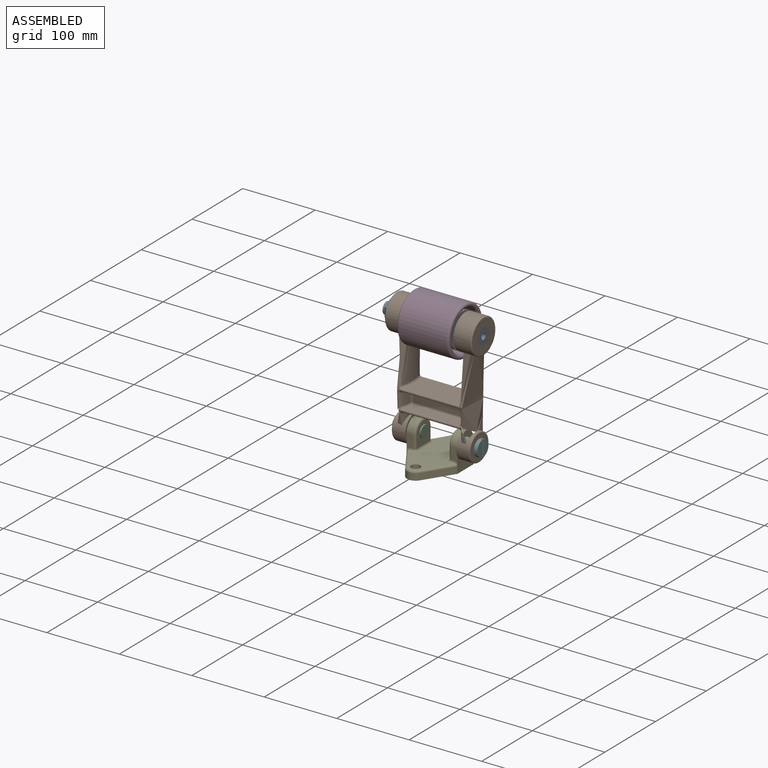
[diagram: assembled view]
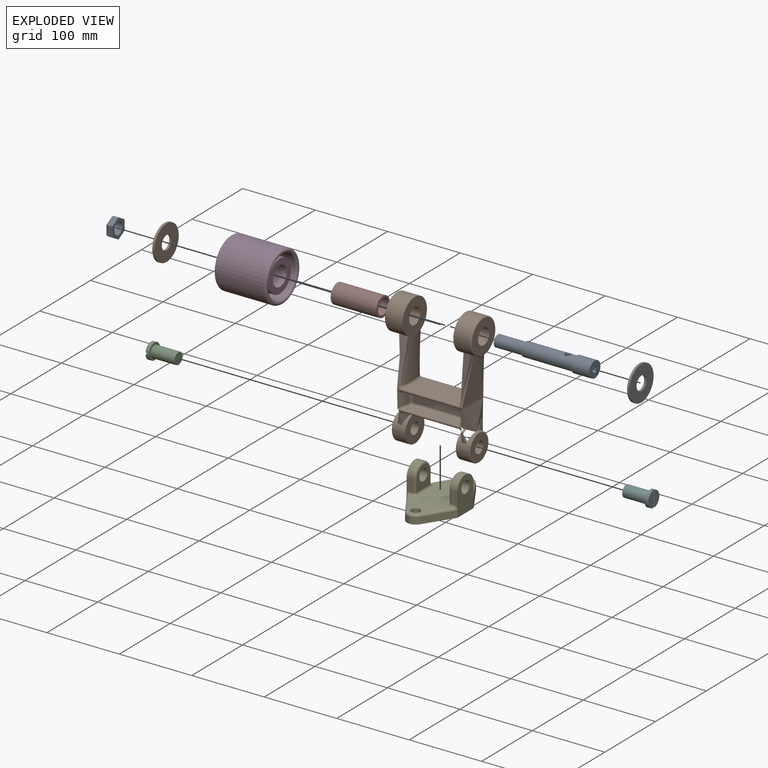
[diagram: exploded view]
GUIDED TOUR — MATED ASSEMBLY (Onshape document 57325394e4b04a08b7d29792, AutoMate assembly 57325394e4b04a08b7d29792_8d2606eafc83a41d2688beb7_20a024cef18a77f3e9520121_default)

This assembly has 10 components, labeled P0..P9 below (a component is one placed occurrence of a part; the same part can appear more than once), held together by 11 mates. A mate is a constraint between two components; its type names the relative motion it leaves free:
  CYLINDRICAL — leaves both rotation about and translation along the listed axis free,
  FASTENED — locks the two components together rigidly (no relative motion).
Axis/direction vectors are unit vectors and 'through' points are millimeter coordinates, both in the assembly's world frame.

MATES
  1. FASTENED "Fastened 4": P9 <-> P1, direction (-1.000, 0.000, 0.000) through (-160.87, -73.57, 147.60) mm
  2. FASTENED "Fastened 2": P9 <-> P7, direction (1.000, 0.000, 0.000) through (-157.87, -73.57, 147.60) mm
  3. FASTENED "Fastened 9": P5 <-> P1, direction (-1.000, 0.000, 0.000) through (-71.87, -73.57, 7.60) mm
  4. FASTENED "Fastened 3": P6 <-> P7, direction (1.000, 0.000, 0.000) through (-94.87, -73.57, 147.60) mm
  5. FASTENED "Fastened 1": P7 <-> P3, direction (-1.000, 0.000, 0.000) through (-126.37, -73.57, 147.60) mm
  6. FASTENED "Fastened 6": P1 <-> P4, direction (1.000, 0.000, 0.000) through (-160.87, -73.57, 7.60) mm
  7. CYLINDRICAL "Cylindrical 1": P5 <-> P1, axis (1.000, 0.000, 0.000) through (-71.87, -73.57, 7.60) mm
  8. FASTENED "Fastened 7": P2 <-> P1, direction (1.000, 0.000, 0.000) through (-179.87, -73.57, 7.60) mm
  9. CYLINDRICAL "Cylindrical 2": P2 <-> P1, axis (-1.000, 0.000, 0.000) through (-179.87, -73.57, 7.60) mm
  10. FASTENED "Fastened 5": P0 <-> P1, direction (-1.000, 0.000, 0.000) through (-90.87, -73.57, 147.60) mm
  11. FASTENED "Fastened 8": P8 <-> P1, direction (1.000, 0.000, 0.000) through (-185.87, -73.57, 147.60) mm

ASSEMBLY ORDER
  1. P1 — the base component [order heuristic]
  2. P0 — core [order heuristic]
  3. P7 — core [order heuristic]
  4. P3 — core [order heuristic]
  5. P6 [order verified]
  6. P9 — core [order heuristic]
  7. P8 — core [order heuristic]
  8. P4 [order verified]
  9. P5 [order verified]
  10. P2 [order verified]
Order-tag legend:
  [order verified] — this step's position reverses a verified removal order: the component was checked to insert without passing through the ones already placed.
  [order heuristic] — the first 6 components form the assembly's core: parts whose collision-free extraction could not be verified, listed in mate-graph order.

Of the 10 components, 9 carry the full construction recipe — the FeatureScript program that regenerates the part's solid from scratch; the rest are supplied as boundary geometry only.
Each toured component is shown spotlighted twice — in the assembled view, then in the exploded view, where a leader line traces a displaced component back to its assembled socket (saturated green if recipe-attached, orange if geometry-only; every other component desaturated gray) — followed by its recipe or geometry summary and the mates that hold it.
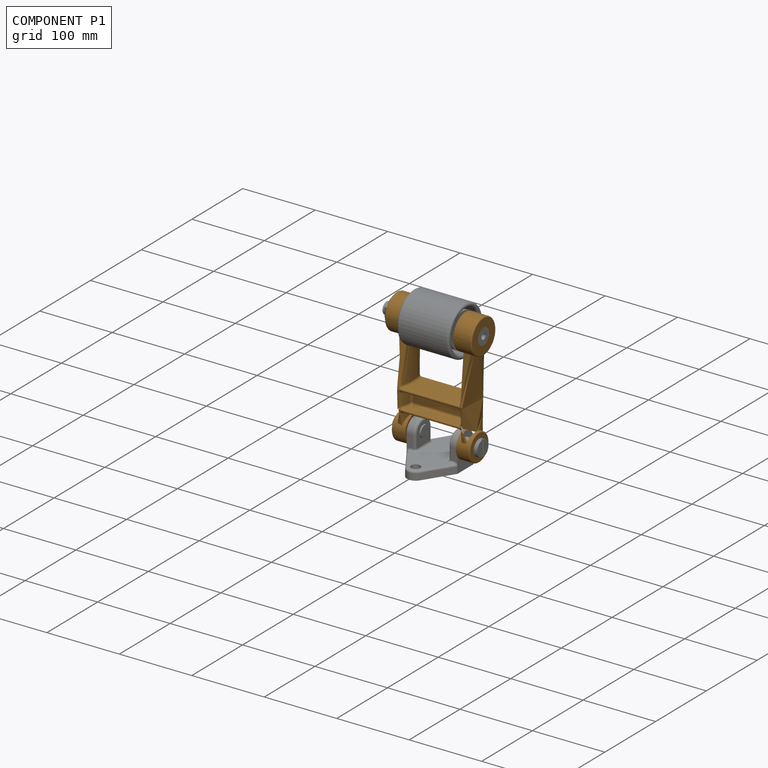
[diagram: component P1 — assembled]
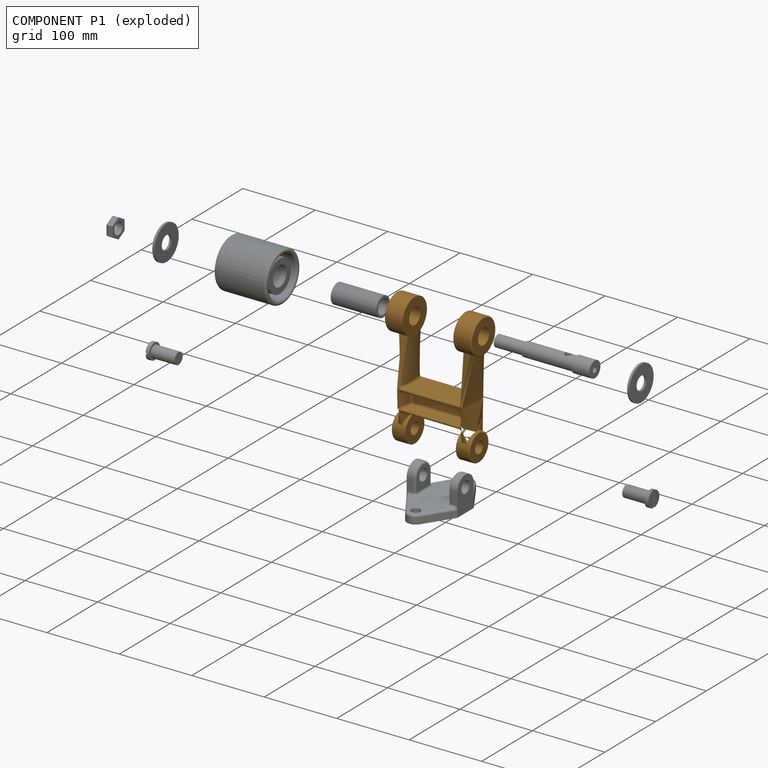
[diagram: component P1 — exploded]
COMPONENT P1 — geometry summary (no construction recipe available for this part):
  bounding box: 187.1 x 120.6 x 52.5 mm
  B-rep topology: 1 solid, 88 faces, 404 edges
  volume: 220370 mm^3 (19% of its bounding box)
  symmetry: mirror-symmetric across its y mid-plane
Held by: FASTENED mate "Fastened 4" to P9; FASTENED mate "Fastened 9" to P5; FASTENED mate "Fastened 6" to P4; CYLINDRICAL mate "Cylindrical 1" to P5; FASTENED mate "Fastened 7" to P2; CYLINDRICAL mate "Cylindrical 2" to P2; FASTENED mate "Fastened 5" to P0; FASTENED mate "Fastened 8" to P8.
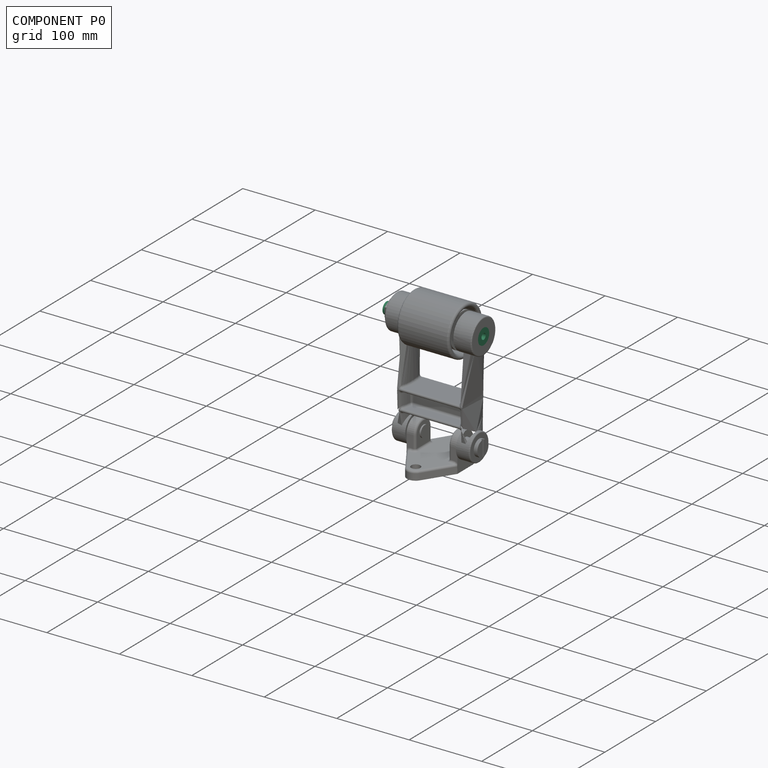
[diagram: component P0 — assembled]
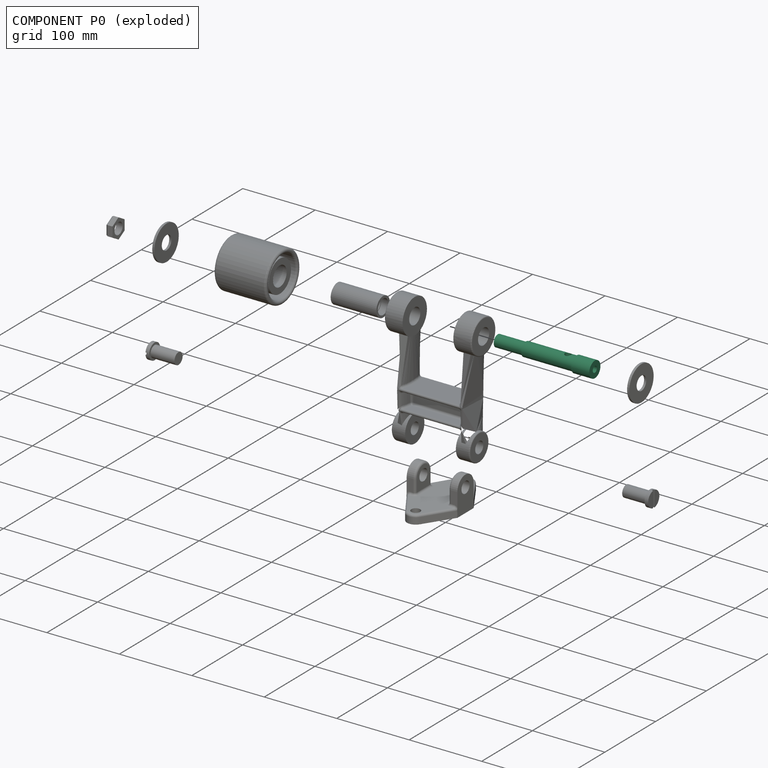
[diagram: component P0 — exploded]
COMPONENT P0 — recipe-attached (CADFS 00152145, mesh-verified: the recipe's output STEP matches this component's geometry to below the mesh-comparison resolution (tessellation chordal tolerance ~0.206 mm)).
Held by: FASTENED mate "Fastened 5" to P1.
Construction recipe (FeatureScript — the CAD program that rebuilds this solid; sketch coordinates are in the units given by the * unit suffixes, e.g. mm):

FeatureScript 1511;
import(path : "onshape/std/geometry.fs", version : "1511.0");
import(path : "onshape/std/common.fs", version : "1511.0");
const mm = millimeter;
const VERTEX = EntityType.VERTEX;
const EDGE = EntityType.EDGE;
const FACE = EntityType.FACE;
const BODY = EntityType.BODY;
function v(x, y){return vector(x, y);}
function OD(order){return orderDisambiguation(order);}
function OSD(set){return originalSetDisambiguation(set);}
function TD(topology){return topologyDisambiguation(topology);}
function TDD(query){return trueDependencyDisambiguation(query);}
function sQuery(a, b, c) {return sketchEntityQuery(a, b, c);}

annotation { "Feature Type Name" : "Feature", "Feature Type Description" : "" }
export const myFeature = defineFeature(function(context is Context, id is Id, definition is map)
    precondition{}
    {
        {
            var Q0;
            Q0=qCreatedBy(makeId("Front.planeOp"),FACE);
            var sketch = newSketch(context, id + "F0", { "sketchPlane" : qUnion([Q0])});
            skLineSegment(sketch, "E0", {"start": v(-58.13, 0) * mm, "end": v(0, 0) * mm, "construction": true});
            skLineSegment(sketch, "E1.bottom", {"start": v(0, 0) * mm, "end": v(-25, 0) * mm});
            skLineSegment(sketch, "E1.top", {"start": v(0, 11) * mm, "end": v(-25, 11) * mm});
            skLineSegment(sketch, "E1.left", {"start": v(0, 0) * mm, "end": v(0, 11) * mm});
            skLineSegment(sketch, "E1.right", {"start": v(-25, 0) * mm, "end": v(-25, 11) * mm});
            skLineSegment(sketch, "E2.bottom", {"start": v(-25, 0) * mm, "end": v(-37, 0) * mm});
            skLineSegment(sketch, "E2.top", {"start": v(-25, 9.5) * mm, "end": v(-37, 9.5) * mm});
            skLineSegment(sketch, "E2.left", {"start": v(-25, 0) * mm, "end": v(-25, 9.5) * mm});
            skLineSegment(sketch, "E2.right", {"start": v(-37, 0) * mm, "end": v(-37, 9.5) * mm});
            skLineSegment(sketch, "E3.bottom", {"start": v(-37, 0) * mm, "end": v(-95, 0) * mm});
            skLineSegment(sketch, "E3.top", {"start": v(-37, 9.5) * mm, "end": v(-95, 9.5) * mm});
            skLineSegment(sketch, "E3.right", {"start": v(-95, 0) * mm, "end": v(-95, 9.5) * mm});
            skLineSegment(sketch, "E4.bottom", {"start": v(-95, 0) * mm, "end": v(-134, 0) * mm});
            skLineSegment(sketch, "E4.top", {"start": v(-95, 8) * mm, "end": v(-134, 8) * mm});
            skLineSegment(sketch, "E4.left", {"start": v(-95, 0) * mm, "end": v(-95, 8) * mm});
            skLineSegment(sketch, "E4.right", {"start": v(-134, 0) * mm, "end": v(-134, 8) * mm});
            skLineSegment(sketch, "E5.MirrorCS", {"start": v(-25, 0) * mm, "end": v(-25, -11) * mm});
            skLineSegment(sketch, "E6.MirrorCS", {"start": v(-37, 0) * mm, "end": v(-37, -9.5) * mm});
            skLineSegment(sketch, "E7.MirrorCS", {"start": v(-95, 0) * mm, "end": v(-95, -8) * mm});
            skLineSegment(sketch, "E8.MirrorCS", {"start": v(-134, 0) * mm, "end": v(-134, -8) * mm});
            skLineSegment(sketch, "E9.MirrorCS", {"start": v(-95, 0) * mm, "end": v(-95, -9.5) * mm});
            skLineSegment(sketch, "E10.MirrorCS", {"start": v(-37, -9.5) * mm, "end": v(-95, -9.5) * mm});
            skLineSegment(sketch, "E11.MirrorCS", {"start": v(-25, 0) * mm, "end": v(-25, -9.5) * mm});
            skLineSegment(sketch, "E12.MirrorCS", {"start": v(-25, -9.5) * mm, "end": v(-37, -9.5) * mm});
            skLineSegment(sketch, "E13.MirrorCS", {"start": v(0, 0) * mm, "end": v(0, -11) * mm});
            skLineSegment(sketch, "E14.MirrorCS", {"start": v(0, -11) * mm, "end": v(-25, -11) * mm});
            skLineSegment(sketch, "E15.MirrorCS", {"start": v(-95, -8) * mm, "end": v(-134, -8) * mm});
            skSolve(sketch);
        }
        {
            var Q0;
            Q0=makeQuery(id+"F0.imprint","IMPRINT",FACE,{"disambiguationData":[TD([[makeQuery(id+"F0.imprint","IMPRINT",EDGE,{"derivedFrom":sQuery(id+"F0.wireOp",EDGE,"E1.bottom")}),-1.0]])]});
            var Q1;
            Q1=makeQuery(id+"F0.imprint","IMPRINT",FACE,{"disambiguationData":[TD([[makeQuery(id+"F0.imprint","IMPRINT",EDGE,{"derivedFrom":sQuery(id+"F0.wireOp",EDGE,"E2.top")}),1.0]])]});
            var Q2;
            Q2=makeQuery(id+"F0.imprint","IMPRINT",FACE,{"disambiguationData":[TD([[makeQuery(id+"F0.imprint","IMPRINT",EDGE,{"derivedFrom":sQuery(id+"F0.wireOp",EDGE,"E3.top")}),1.0]])]});
            var Q3;
            Q3=makeQuery(id+"F0.imprint","IMPRINT",FACE,{"disambiguationData":[TD([[makeQuery(id+"F0.imprint","IMPRINT",EDGE,{"derivedFrom":sQuery(id+"F0.wireOp",EDGE,"E4.top")}),1.0]])]});
            var Q4;
            Q4=sQuery(id+"F0.wireOp",EDGE,"E1.bottom");
            revolve(context, id + "F1", {"entities" : qUnion([Q0, Q1, Q2, Q3]), "axis" : qUnion([Q4]), "revolveType" : RevolveType.FULL});
        }
        {
            var Q0;
            Q0=qCreatedBy(makeId("Top.planeOp"),FACE);
            var sketch = newSketch(context, id + "F2", { "sketchPlane" : qUnion([Q0])});
            skLineSegment(sketch, "E16.0", {"start": v(-37, 0) * mm, "end": v(-95, 0) * mm});
            skLineSegment(sketch, "E17.0", {"start": v(-25, 0) * mm, "end": v(-37, 0) * mm});
            skCircle(sketch, "E18", {"center": v(-37, 0) * mm, "radius": 4.15 * mm});
            skSolve(sketch);
        }
        {
            var Q0;
            {var subQ0=sQuery(id+"F2.wireOp",EDGE,"E17.0");var subQ1=sQuery(id+"F2.wireOp",EDGE,"E16.0");var subQ2=makeQuery(id+"F2.imprint","INTERSECT",VERTEX,{"derivedFrom":[subQ1,subQ0]});Q0=makeQuery(id+"F2.imprint","IMPRINT",FACE,{"disambiguationData":[TD([[makeQuery(id+"F2.imprint","IMPRINT",EDGE,{"disambiguationData":[TD([[subQ2,-1.0]])],"derivedFrom":subQ1}),-1.0]])]});}
            var Q1;
            {var subQ0=sQuery(id+"F2.wireOp",EDGE,"E17.0");var subQ1=sQuery(id+"F2.wireOp",EDGE,"E16.0");var subQ2=makeQuery(id+"F2.imprint","INTERSECT",VERTEX,{"derivedFrom":[subQ1,subQ0]});Q1=makeQuery(id+"F2.imprint","IMPRINT",FACE,{"disambiguationData":[TD([[makeQuery(id+"F2.imprint","IMPRINT",EDGE,{"disambiguationData":[TD([[subQ2,-1.0]])],"derivedFrom":subQ1}),1.0]])]});}
            extrude(context, id + "F3", {"entities" : qUnion([Q0, Q1]), "operationType" : NewBodyOperationType.REMOVE, "endBound" : BoundingType.THROUGH_ALL, "depth" : 25 * mm, "hasSecondDirection" : true, "secondDirectionBound" : SecondDirectionBoundingType.THROUGH_ALL, "secondDirectionOppositeDirection" : true, "secondDirectionDepth" : 25 * mm});
        }
        {
            var Q0;
            Q0=qCreatedBy(makeId("Right.planeOp"),FACE);
            var sketch = newSketch(context, id + "F4", { "sketchPlane" : qUnion([Q0])});
            skCircle(sketch, "E19", {"center": v(0, 0) * mm, "radius": 4.15 * mm});
            skSolve(sketch);
        }
        {
            var Q0;
            Q0=qSketchRegion(id+"F4",true);
            extrude(context, id + "F5", {"entities" : qUnion([Q0]), "operationType" : NewBodyOperationType.REMOVE, "oppositeDirection" : true, "depth" : 44 * mm});
        }
    });
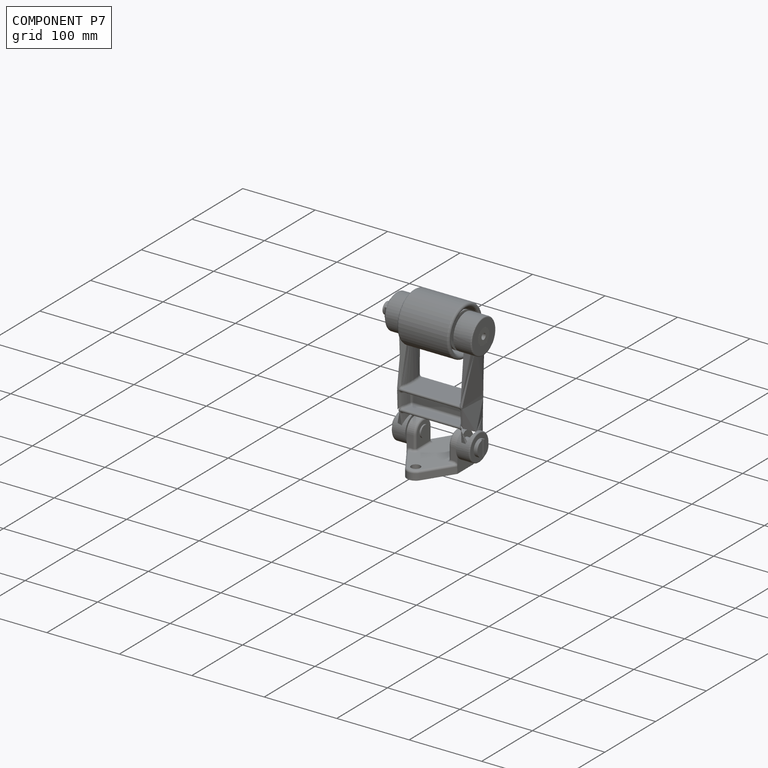
[diagram: component P7 — assembled]
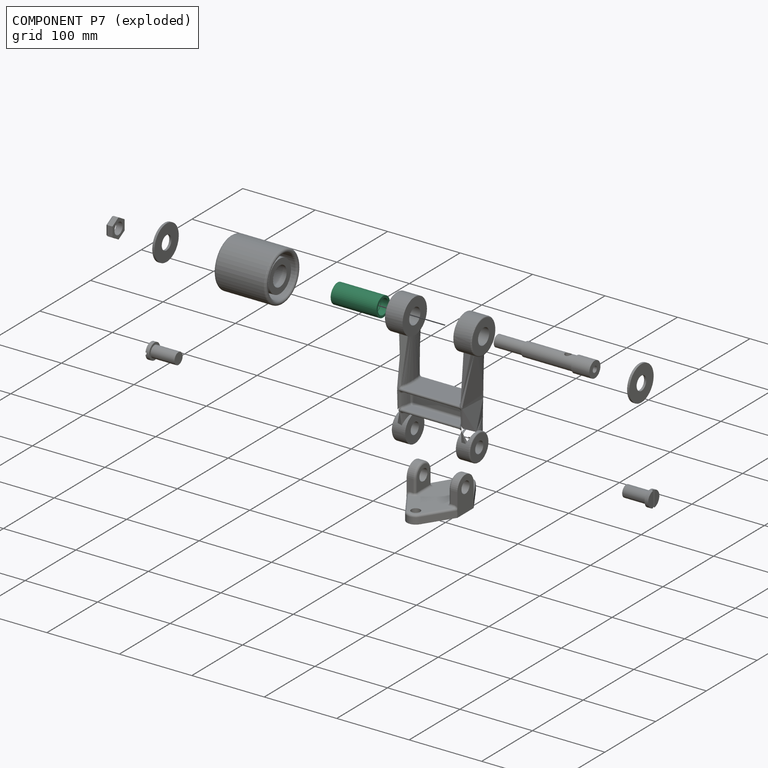
[diagram: component P7 — exploded]
COMPONENT P7 — recipe-attached (CADFS 00152167, mesh-verified: the recipe's output STEP matches this component's geometry to below the mesh-comparison resolution (tessellation chordal tolerance ~0.11 mm)).
Held by: FASTENED mate "Fastened 2" to P9; FASTENED mate "Fastened 3" to P6; FASTENED mate "Fastened 1" to P3.
Construction recipe (FeatureScript — the CAD program that rebuilds this solid; sketch coordinates are in the units given by the * unit suffixes, e.g. mm):

FeatureScript 1511;
import(path : "onshape/std/geometry.fs", version : "1511.0");
import(path : "onshape/std/common.fs", version : "1511.0");
const mm = millimeter;
const VERTEX = EntityType.VERTEX;
const EDGE = EntityType.EDGE;
const FACE = EntityType.FACE;
const BODY = EntityType.BODY;
function v(x, y){return vector(x, y);}
function OD(order){return orderDisambiguation(order);}
function OSD(set){return originalSetDisambiguation(set);}
function TD(topology){return topologyDisambiguation(topology);}
function TDD(query){return trueDependencyDisambiguation(query);}
function sQuery(a, b, c) {return sketchEntityQuery(a, b, c);}

annotation { "Feature Type Name" : "Feature", "Feature Type Description" : "" }
export const myFeature = defineFeature(function(context is Context, id is Id, definition is map)
    precondition{}
    {
        {
            var Q0;
            Q0=qCreatedBy(makeId("Right.planeOp"),FACE);
            var sketch = newSketch(context, id + "F0", { "sketchPlane" : qUnion([Q0])});
            skCircle(sketch, "E0", {"center": v(0, 0) * mm, "radius": 13.45 * mm});
            skSolve(sketch);
        }
        {
            var Q0;
            Q0=qSketchRegion(id+"F0",true);
            extrude(context, id + "F1", {"entities" : qUnion([Q0]), "depth" : 63 * mm});
        }
        {
            var Q0;
            Q0=makeQuery(id+"F1.opExtrude","CAP_FACE",FACE,{"disambiguationData":[OSD([sQuery(id+"F0.wireOp",EDGE,"E0")])],"isStart":false});
            var sketch = newSketch(context, id + "F2", { "sketchPlane" : qUnion([Q0])});
            skCircle(sketch, "E1", {"center": v(0, 0) * mm, "radius": 9.5 * mm});
            skSolve(sketch);
        }
        {
            var Q0;
            Q0=qSketchRegion(id+"F2",true);
            extrude(context, id + "F3", {"entities" : qUnion([Q0]), "operationType" : NewBodyOperationType.REMOVE, "endBound" : BoundingType.THROUGH_ALL, "oppositeDirection" : true, "depth" : 25 * mm});
        }
        {
            var Q0;
            Q0=makeQuery(id+"F1.opExtrude","CAP_FACE",FACE,{"disambiguationData":[OSD([sQuery(id+"F0.wireOp",EDGE,"E0")])],"isStart":false});
            var sketch = newSketch(context, id + "F4", { "sketchPlane" : qUnion([Q0])});
            skCircle(sketch, "E2", {"center": v(0, 0) * mm, "radius": 10.3 * mm});
            skSolve(sketch);
        }
        {
            var Q0;
            Q0=qSketchRegion(id+"F4",true);
            extrude(context, id + "F5", {"entities" : qUnion([Q0]), "operationType" : NewBodyOperationType.REMOVE, "oppositeDirection" : true, "depth" : 10 * mm});
        }
    });
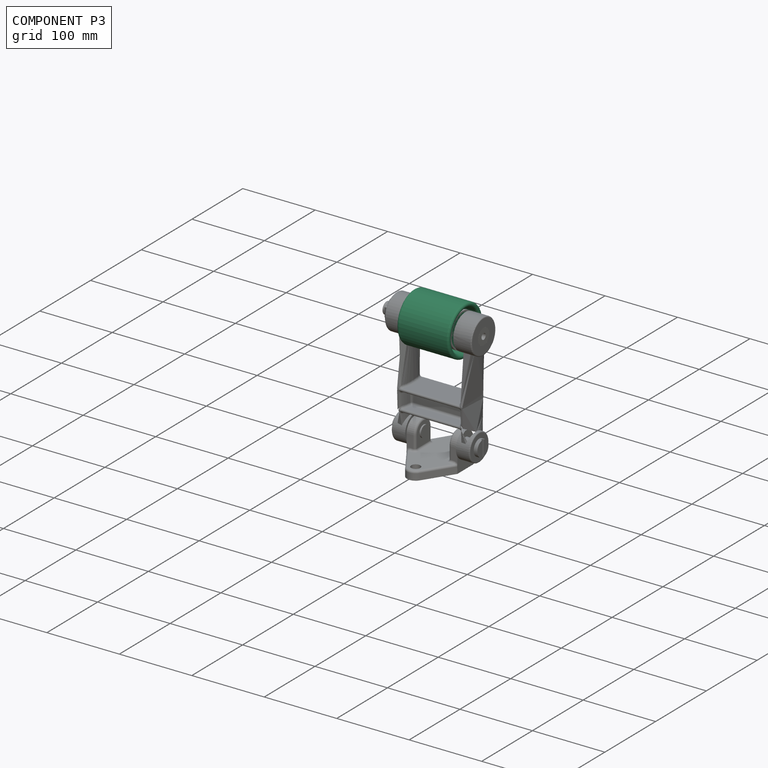
[diagram: component P3 — assembled]
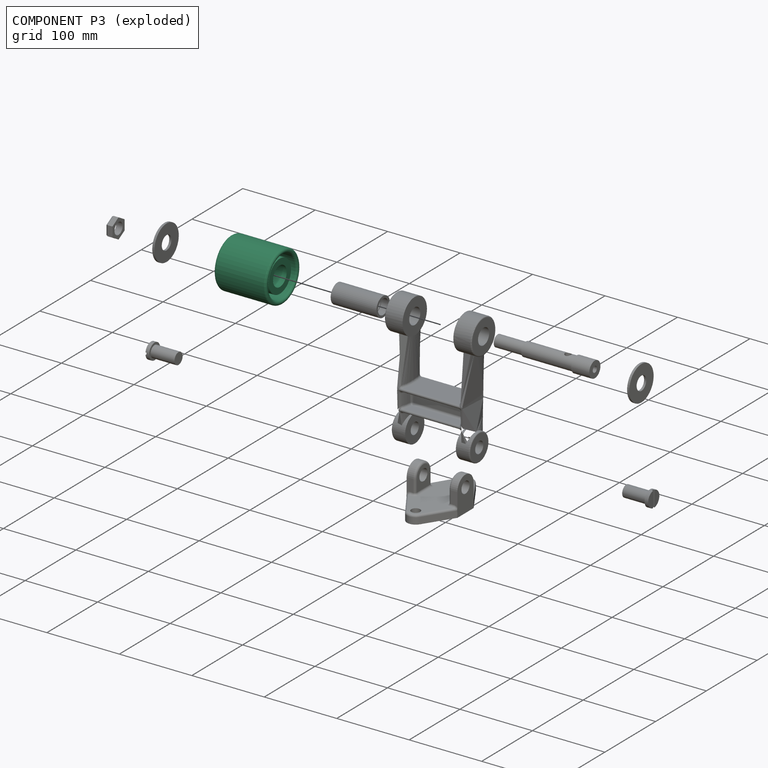
[diagram: component P3 — exploded]
COMPONENT P3 — recipe-attached (CADFS 00152165, mesh-verified: the recipe's output STEP matches this component's geometry to below the mesh-comparison resolution (tessellation chordal tolerance ~0.18 mm)).
Held by: FASTENED mate "Fastened 1" to P7.
Construction recipe (FeatureScript — the CAD program that rebuilds this solid; sketch coordinates are in the units given by the * unit suffixes, e.g. mm):

FeatureScript 1511;
import(path : "onshape/std/geometry.fs", version : "1511.0");
import(path : "onshape/std/common.fs", version : "1511.0");
const mm = millimeter;
const VERTEX = EntityType.VERTEX;
const EDGE = EntityType.EDGE;
const FACE = EntityType.FACE;
const BODY = EntityType.BODY;
function v(x, y){return vector(x, y);}
function OD(order){return orderDisambiguation(order);}
function OSD(set){return originalSetDisambiguation(set);}
function TD(topology){return topologyDisambiguation(topology);}
function TDD(query){return trueDependencyDisambiguation(query);}
function sQuery(a, b, c) {return sketchEntityQuery(a, b, c);}

annotation { "Feature Type Name" : "Feature", "Feature Type Description" : "" }
export const myFeature = defineFeature(function(context is Context, id is Id, definition is map)
    precondition{}
    {
        {
            var Q0;
            Q0=qCreatedBy(makeId("Right.planeOp"),FACE);
            var sketch = newSketch(context, id + "F0", { "sketchPlane" : qUnion([Q0])});
            skCircle(sketch, "E0", {"center": v(0, 0) * mm, "radius": 13.45 * mm});
            skCircle(sketch, "E1", {"center": v(0, 0) * mm, "radius": 22 * mm});
            skSolve(sketch);
        }
        {
            var Q0;
            Q0=qSketchRegion(id+"F0",true);
            extrude(context, id + "F1", {"entities" : qUnion([Q0]), "depth" : 63 * mm});
        }
        {
            var Q0;
            Q0=qCreatedBy(makeId("Front.planeOp"),FACE);
            var sketch = newSketch(context, id + "F2", { "sketchPlane" : qUnion([Q0])});
            skLineSegment(sketch, "E2", {"start": v(31.5, 0) * mm, "end": v(31.5, 25.59) * mm, "construction": true});
            skLineSegment(sketch, "E3", {"start": v(-1.5, 34) * mm, "end": v(64.5, 34) * mm});
            skArc(sketch, "E4", {"start": v(-1.5, 34) * mm, "mid": v(-4.5, 31) * mm, "end": v(-1.5, 28) * mm});
            skArc(sketch, "E5", {"start": v(64.5, 34) * mm, "mid": v(67.5, 31) * mm, "end": v(64.5, 28) * mm});
            skLineSegment(sketch, "E6", {"start": v(-1.5, 28) * mm, "end": v(25.5, 28) * mm});
            skLineSegment(sketch, "E7", {"start": v(64.5, 28) * mm, "end": v(37.5, 28) * mm});
            skLineSegment(sketch, "E8", {"start": v(0, 22) * mm, "end": v(63, 22) * mm, "construction": true});
            skArc(sketch, "E9", {"start": v(25.5, 28) * mm, "mid": v(28.5, 25) * mm, "end": v(25.5, 22) * mm});
            skArc(sketch, "E10", {"start": v(37.5, 28) * mm, "mid": v(34.5, 25) * mm, "end": v(37.5, 22) * mm});
            skLineSegment(sketch, "E11", {"start": v(25.5, 22) * mm, "end": v(37.5, 22) * mm});
            skSolve(sketch);
        }
        {
            var Q0;
            Q0=qSketchRegion(id+"F2",true);
            var Q1;
            Q1=makeQuery(id+"F1.opExtrude","SWEPT_FACE",FACE,{"disambiguationData":[OSD([sQuery(id+"F0.wireOp",EDGE,"E1")])]});
            revolve(context, id + "F3", {"operationType" : NewBodyOperationType.ADD, "entities" : qUnion([Q0]), "axis" : qUnion([Q1]), "revolveType" : RevolveType.FULL});
        }
    });
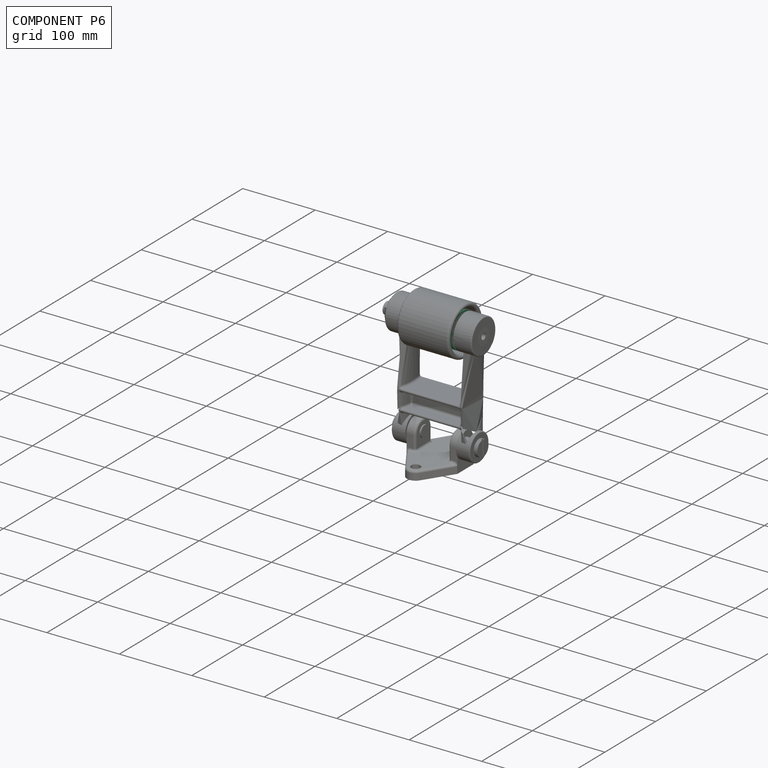
[diagram: component P6 — assembled]
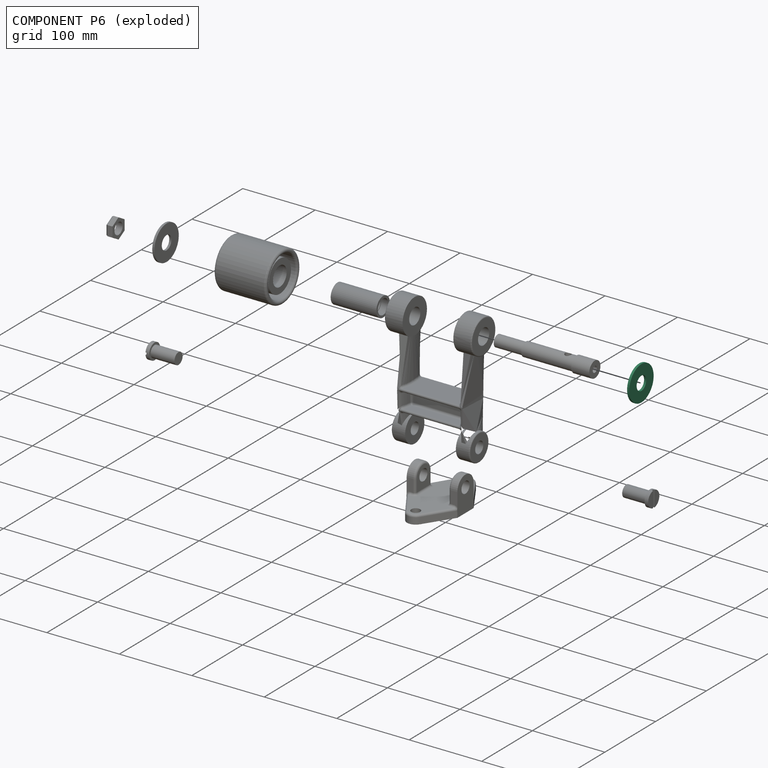
[diagram: component P6 — exploded]
COMPONENT P6 — recipe-attached (CADFS 00152168, mesh-verified: the recipe's output STEP matches this component's geometry to below the mesh-comparison resolution (tessellation chordal tolerance ~0.102 mm)).
Held by: FASTENED mate "Fastened 3" to P7.
Construction recipe (FeatureScript — the CAD program that rebuilds this solid; sketch coordinates are in the units given by the * unit suffixes, e.g. mm):

FeatureScript 1511;
import(path : "onshape/std/geometry.fs", version : "1511.0");
import(path : "onshape/std/common.fs", version : "1511.0");
const mm = millimeter;
const VERTEX = EntityType.VERTEX;
const EDGE = EntityType.EDGE;
const FACE = EntityType.FACE;
const BODY = EntityType.BODY;
function v(x, y){return vector(x, y);}
function OD(order){return orderDisambiguation(order);}
function OSD(set){return originalSetDisambiguation(set);}
function TD(topology){return topologyDisambiguation(topology);}
function TDD(query){return trueDependencyDisambiguation(query);}
function sQuery(a, b, c) {return sketchEntityQuery(a, b, c);}

annotation { "Feature Type Name" : "Feature", "Feature Type Description" : "" }
export const myFeature = defineFeature(function(context is Context, id is Id, definition is map)
    precondition{}
    {
        {
            var Q0;
            Q0=qCreatedBy(makeId("Front.planeOp"),FACE);
            var sketch = newSketch(context, id + "F0", { "sketchPlane" : qUnion([Q0])});
            skCircle(sketch, "E0", {"center": v(0, 0) * mm, "radius": 24 * mm});
            skCircle(sketch, "E1", {"center": v(0, 0) * mm, "radius": 9.5 * mm});
            skSolve(sketch);
        }
        {
            var Q0;
            Q0=makeQuery(id+"F0.imprint","IMPRINT",FACE,{"disambiguationData":[TD([[makeQuery(id+"F0.imprint","IMPRINT",EDGE,{"derivedFrom":sQuery(id+"F0.wireOp",EDGE,"E0")}),1.0]])]});
            extrude(context, id + "F1", {"entities" : qUnion([Q0]), "endBound" : BoundingType.SYMMETRIC, "depth" : 3 * mm});
        }
    });
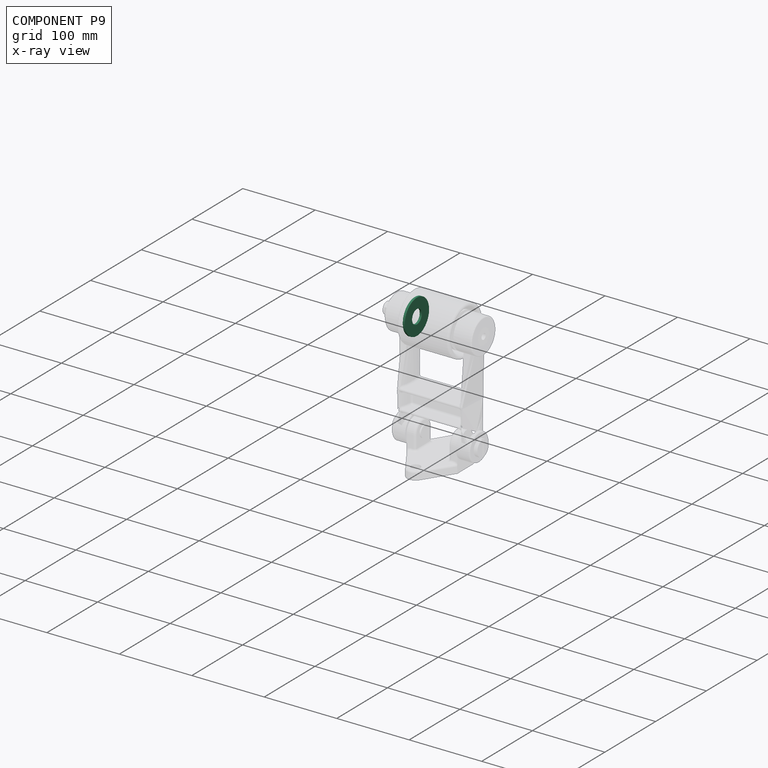
[diagram: component P9 — x-ray view]
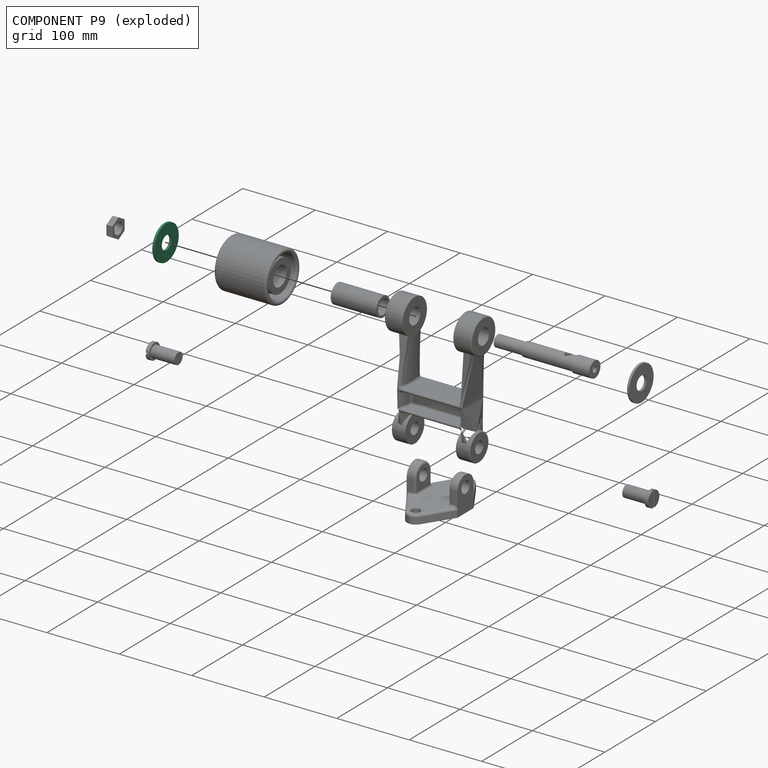
[diagram: component P9 — exploded]
COMPONENT P9 — same part as P6 (CADFS 00152168); its construction recipe is shown at P6.
Held by: FASTENED mate "Fastened 4" to P1; FASTENED mate "Fastened 2" to P7.
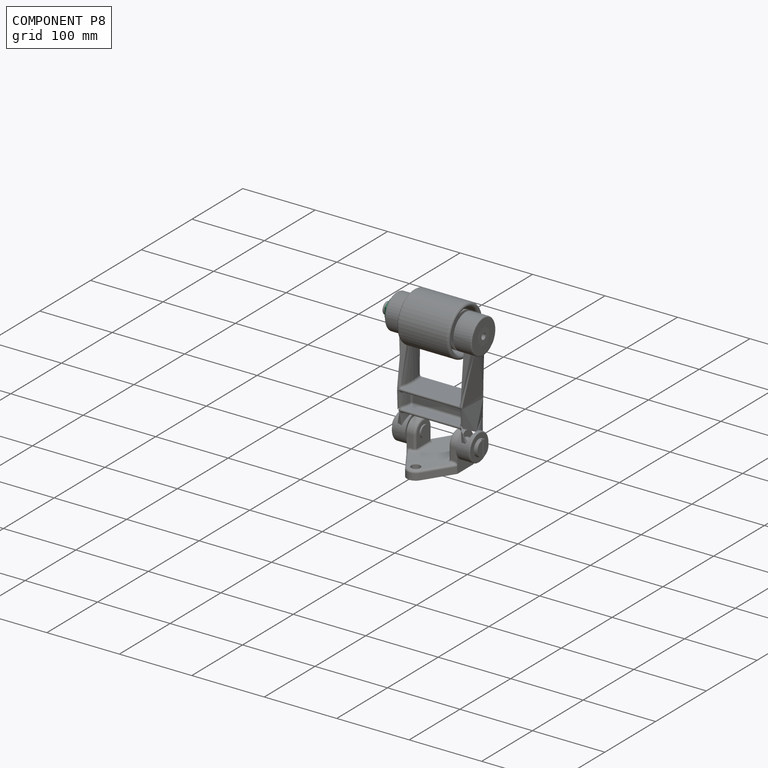
[diagram: component P8 — assembled]
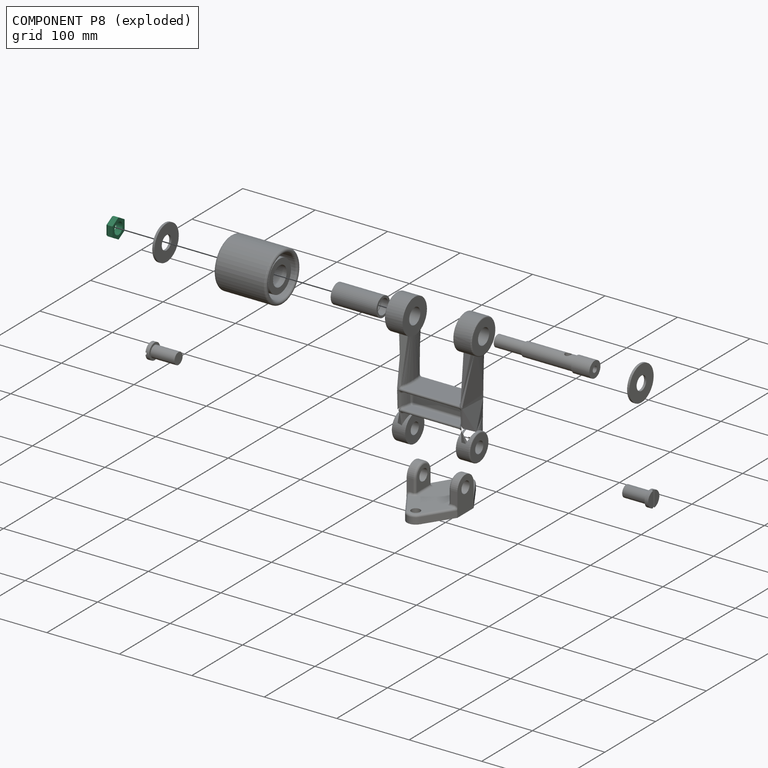
[diagram: component P8 — exploded]
COMPONENT P8 — recipe-attached (CADFS 00152148, mesh-verified: the recipe's output STEP matches this component's geometry to below the mesh-comparison resolution (tessellation chordal tolerance ~0.0566 mm)).
Held by: FASTENED mate "Fastened 8" to P1.
Construction recipe (FeatureScript — the CAD program that rebuilds this solid; sketch coordinates are in the units given by the * unit suffixes, e.g. mm):

FeatureScript 1511;
import(path : "onshape/std/geometry.fs", version : "1511.0");
import(path : "onshape/std/common.fs", version : "1511.0");
const mm = millimeter;
const VERTEX = EntityType.VERTEX;
const EDGE = EntityType.EDGE;
const FACE = EntityType.FACE;
const BODY = EntityType.BODY;
function v(x, y){return vector(x, y);}
function OD(order){return orderDisambiguation(order);}
function OSD(set){return originalSetDisambiguation(set);}
function TD(topology){return topologyDisambiguation(topology);}
function TDD(query){return trueDependencyDisambiguation(query);}
function sQuery(a, b, c) {return sketchEntityQuery(a, b, c);}

annotation { "Feature Type Name" : "Feature", "Feature Type Description" : "" }
export const myFeature = defineFeature(function(context is Context, id is Id, definition is map)
    precondition{}
    {
        {
            var Q0;
            Q0=qCreatedBy(makeId("Front.planeOp"),FACE);
            var sketch = newSketch(context, id + "F0", { "sketchPlane" : qUnion([Q0])});
            skLineSegment(sketch, "E0", {"start": v(0, 0) * mm, "end": v(0, 12) * mm, "construction": true});
            skLineSegment(sketch, "E1", {"start": v(0, 0) * mm, "end": v(0, -12) * mm, "construction": true});
            skLineSegment(sketch, "E2", {"start": v(0, 0) * mm, "end": v(13.86, 0) * mm, "construction": true});
            skLineSegment(sketch, "E3", {"start": v(0, 0) * mm, "end": v(-13.86, 0) * mm, "construction": true});
            skLineSegment(sketch, "E4", {"start": v(-6.93, 12) * mm, "end": v(6.93, 12) * mm});
            skLineSegment(sketch, "E5", {"start": v(6.93, 12) * mm, "end": v(13.86, 0) * mm});
            skLineSegment(sketch, "E6", {"start": v(-6.93, -12) * mm, "end": v(6.93, -12) * mm});
            skLineSegment(sketch, "E7", {"start": v(6.93, -12) * mm, "end": v(13.86, 0) * mm});
            skLineSegment(sketch, "E8", {"start": v(-6.93, -12) * mm, "end": v(-13.86, 0) * mm});
            skLineSegment(sketch, "E9", {"start": v(-6.93, 12) * mm, "end": v(-13.86, 0) * mm});
            skCircle(sketch, "E10", {"center": v(0, 0) * mm, "radius": 8 * mm});
            skLineSegment(sketch, "E11", {"start": v(-13.86, 0) * mm, "end": v(6.93, 12) * mm, "construction": true});
            skLineSegment(sketch, "E12", {"start": v(13.86, 0) * mm, "end": v(-6.93, -12) * mm, "construction": true});
            skLineSegment(sketch, "E13", {"start": v(-6.93, 12) * mm, "end": v(6.93, -12) * mm, "construction": true});
            skSolve(sketch);
        }
        {
            var Q0;
            Q0=makeQuery(id+"F0.imprint","IMPRINT",FACE,{"disambiguationData":[TD([[makeQuery(id+"F0.imprint","IMPRINT",EDGE,{"derivedFrom":sQuery(id+"F0.wireOp",EDGE,"E4")}),-1.0]])]});
            extrude(context, id + "F1", {"entities" : qUnion([Q0]), "depth" : 9 * mm});
        }
        {
            var Q0;
            Q0=makeQuery(id+"F1.opExtrude","CAP_EDGE",EDGE,{"disambiguationData":[OSD([sQuery(id+"F0.wireOp",EDGE,"E9")])],"isStart":true});
            var Q1;
            Q1=makeQuery(id+"F1.opExtrude","CAP_EDGE",EDGE,{"disambiguationData":[OSD([sQuery(id+"F0.wireOp",EDGE,"E8")])],"isStart":true});
            var Q2;
            Q2=makeQuery(id+"F1.opExtrude","CAP_EDGE",EDGE,{"disambiguationData":[OSD([sQuery(id+"F0.wireOp",EDGE,"E4")])],"isStart":true});
            var Q3;
            Q3=makeQuery(id+"F1.opExtrude","CAP_EDGE",EDGE,{"disambiguationData":[OSD([sQuery(id+"F0.wireOp",EDGE,"E5")])],"isStart":true});
            var Q4;
            Q4=makeQuery(id+"F1.opExtrude","CAP_EDGE",EDGE,{"disambiguationData":[OSD([sQuery(id+"F0.wireOp",EDGE,"E7")])],"isStart":true});
            var Q5;
            Q5=makeQuery(id+"F1.opExtrude","CAP_EDGE",EDGE,{"disambiguationData":[OSD([sQuery(id+"F0.wireOp",EDGE,"E6")])],"isStart":true});
            chamfer(context, id + "F2", {"entities" : qUnion([Q0, Q1, Q2, Q3, Q4, Q5]), "chamferType" : ChamferType.OFFSET_ANGLE, "width" : 2 * mm, "oppositeDirection" : false, "angle" : 30 * degree, "tangentPropagation" : true});
        }
    });
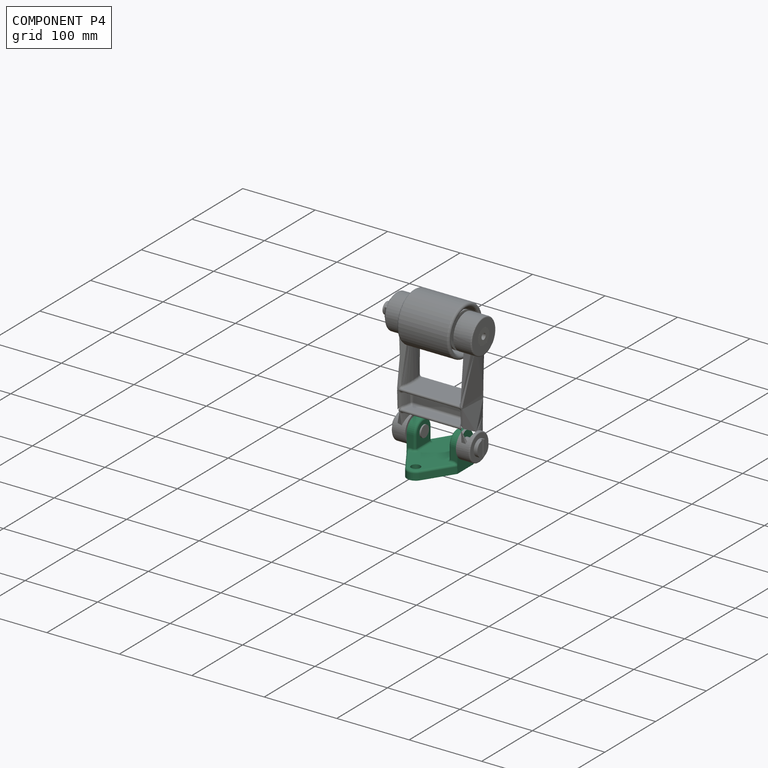
[diagram: component P4 — assembled]
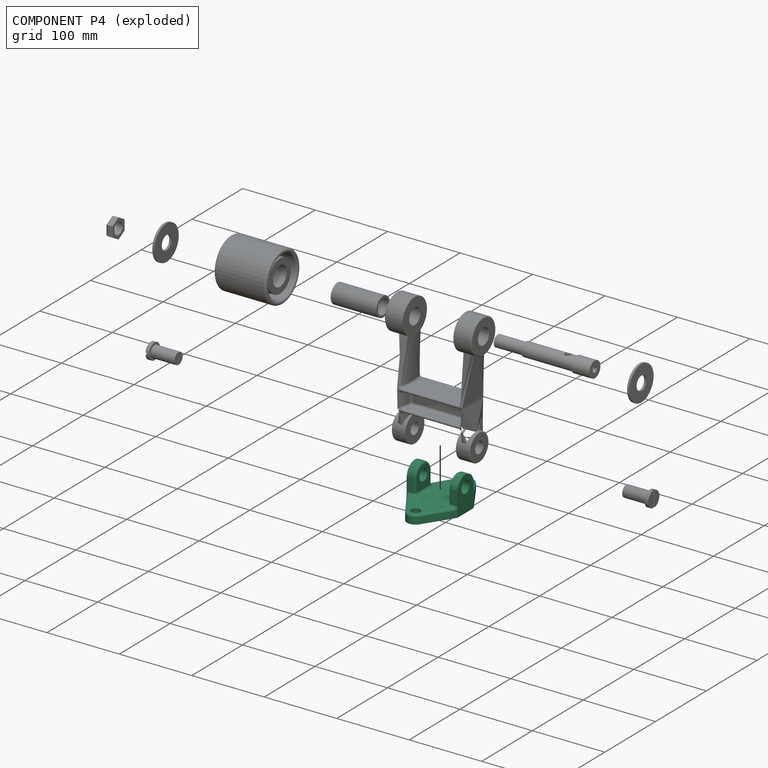
[diagram: component P4 — exploded]
COMPONENT P4 — recipe-attached (CADFS 00152142, mesh-verified: the recipe's output STEP matches this component's geometry to below the mesh-comparison resolution (tessellation chordal tolerance ~0.222 mm)).
Held by: FASTENED mate "Fastened 6" to P1.
Construction recipe (FeatureScript — the CAD program that rebuilds this solid; sketch coordinates are in the units given by the * unit suffixes, e.g. mm):

FeatureScript 1511;
import(path : "onshape/std/geometry.fs", version : "1511.0");
import(path : "onshape/std/common.fs", version : "1511.0");
const mm = millimeter;
const VERTEX = EntityType.VERTEX;
const EDGE = EntityType.EDGE;
const FACE = EntityType.FACE;
const BODY = EntityType.BODY;
function v(x, y){return vector(x, y);}
function OD(order){return orderDisambiguation(order);}
function OSD(set){return originalSetDisambiguation(set);}
function TD(topology){return topologyDisambiguation(topology);}
function TDD(query){return trueDependencyDisambiguation(query);}
function sQuery(a, b, c) {return sketchEntityQuery(a, b, c);}

annotation { "Feature Type Name" : "Feature", "Feature Type Description" : "" }
export const myFeature = defineFeature(function(context is Context, id is Id, definition is map)
    precondition{}
    {
        {
            var Q0;
            Q0=qCreatedBy(makeId("Right.planeOp"),FACE);
            var sketch = newSketch(context, id + "F0", { "sketchPlane" : qUnion([Q0])});
            skLineSegment(sketch, "E0", {"start": v(-16, 0) * mm, "end": v(-16, 32) * mm});
            skLineSegment(sketch, "E1", {"start": v(-16, 0) * mm, "end": v(16, 0) * mm});
            skLineSegment(sketch, "E2", {"start": v(16, 0) * mm, "end": v(16, 32) * mm});
            skCircle(sketch, "E3", {"center": v(0, 32) * mm, "radius": 6 * mm});
            skArc(sketch, "E4", {"start": v(16, 32) * mm, "mid": v(0, 48) * mm, "end": v(-16, 32) * mm});
            skSolve(sketch);
        }
        {
            var Q0;
            Q0=qSketchRegion(id+"F0",true);
            extrude(context, id + "F1", {"entities" : qUnion([Q0]), "oppositeDirection" : true, "depth" : 12 * mm});
        }
        {
            var Q0;
            Q0=qCreatedBy(makeId("Top.planeOp"),FACE);
            var sketch = newSketch(context, id + "F2", { "sketchPlane" : qUnion([Q0])});
            skPoint(sketch, "E5.0", {"position": v(-12, 16) * mm});
            skPoint(sketch, "E6.0", {"position": v(-12, -16) * mm});
            skCircle(sketch, "E7", {"center": v(23, 49.41) * mm, "radius": 6.25 * mm});
            skArc(sketch, "E8", {"start": v(33.18, 55.77) * mm, "mid": v(23, 61.41) * mm, "end": v(12.82, 55.77) * mm});
            skLineSegment(sketch, "E9", {"start": v(33.18, 55.77) * mm, "end": v(58, 16) * mm});
            skPoint(sketch, "E10", {"position": v(-12, 0) * mm});
            skPoint(sketch, "E11", {"position": v(58, 0) * mm});
            skLineSegment(sketch, "E12", {"start": v(58, 0) * mm, "end": v(58, -16) * mm});
            skLineSegment(sketch, "E13", {"start": v(58, -16) * mm, "end": v(58, 16) * mm});
            skPoint(sketch, "E14", {"position": v(23, 0) * mm});
            skLineSegment(sketch, "E15", {"start": v(23, 74.76) * mm, "end": v(23, -48.15) * mm, "construction": true});
            skLineSegment(sketch, "E16", {"start": v(-12, 16) * mm, "end": v(12.82, 55.77) * mm});
            skCircle(sketch, "E17", {"center": v(23, -48.15) * mm, "radius": 6.25 * mm});
            skArc(sketch, "E18", {"start": v(12.91, -54.66) * mm, "mid": v(23, -60.15) * mm, "end": v(33.09, -54.66) * mm});
            skLineSegment(sketch, "E19", {"start": v(58, -16) * mm, "end": v(33.09, -54.66) * mm});
            skLineSegment(sketch, "E20", {"start": v(12.91, -54.66) * mm, "end": v(-12, -16) * mm});
            skLineSegment(sketch, "E21", {"start": v(-12, -16) * mm, "end": v(-12, 16) * mm});
            skSolve(sketch);
        }
        {
            var Q0;
            Q0=qSketchRegion(id+"F2",true);
            extrude(context, id + "F3", {"entities" : qUnion([Q0]), "operationType" : NewBodyOperationType.ADD, "depth" : 12 * mm});
        }
        {
            var Q0;
            Q0=makeQuery(id+"F3.opExtrude","SWEPT_FACE",FACE,{"disambiguationData":[OSD([sQuery(id+"F2.wireOp",EDGE,"E13")])]});
            var sketch = newSketch(context, id + "F4", { "sketchPlane" : qUnion([Q0])});
            skLineSegment(sketch, "E22.0.0", {"start": v(-16, 0) * mm, "end": v(-16, 12) * mm});
            skLineSegment(sketch, "E22.0.1", {"start": v(-16, 12) * mm, "end": v(-16, 32) * mm});
            skArc(sketch, "E22.0.2", {"start": v(-16, 32) * mm, "mid": v(0, 48) * mm, "end": v(16, 32) * mm});
            skLineSegment(sketch, "E22.0.3", {"start": v(16, 32) * mm, "end": v(16, 12) * mm});
            skLineSegment(sketch, "E22.0.4", {"start": v(16, 12) * mm, "end": v(16, 0) * mm});
            skLineSegment(sketch, "E22.0.5", {"start": v(16, 0) * mm, "end": v(-16, 0) * mm});
            skCircle(sketch, "E23.0", {"center": v(0, 32) * mm, "radius": 6 * mm});
            skSolve(sketch);
        }
        {
            var Q0;
            Q0=qSketchRegion(id+"F4",true);
            extrude(context, id + "F5", {"entities" : qUnion([Q0]), "operationType" : NewBodyOperationType.ADD, "oppositeDirection" : true, "depth" : 12 * mm});
        }
        {
            var Q0;
            Q0=makeQuery(id+"F3.opExtrude","CAP_EDGE",EDGE,{"disambiguationData":[OSD([sQuery(id+"F2.wireOp",EDGE,"E19")])],"isStart":false});
            var Q1;
            Q1=makeQuery(id+"F3.opExtrude","CAP_EDGE",EDGE,{"disambiguationData":[OSD([sQuery(id+"F2.wireOp",EDGE,"E9")])],"isStart":false});
            var Q2;
            Q2=makeQuery(id+"F5.opExtrude","CAP_EDGE",EDGE,{"disambiguationData":[OSD([sQuery(id+"F4.wireOp",EDGE,"E22.0.2")])],"isStart":false});
            var Q3;
            Q3=makeQuery(id+"F1.opExtrude","CAP_EDGE",EDGE,{"disambiguationData":[OSD([sQuery(id+"F0.wireOp",EDGE,"E4")])],"isStart":true});
            fillet(context, id + "F6", {"entities" : qUnion([Q0, Q1, Q2, Q3]), "radius" : 3 * mm, "tangentPropagation" : true, "allowEdgeOverflow" : false});
        }
        {
            var Q0;
            Q0=makeQuery(id+"F5.boolean.opBoolean","INTERSECT",EDGE,{"derivedFrom":[makeQuery(id+"F3.opExtrude","CAP_FACE",FACE,{"disambiguationData":[OSD([sQuery(id+"F2.wireOp",EDGE,"E7"),sQuery(id+"F2.wireOp",EDGE,"E8"),sQuery(id+"F2.wireOp",EDGE,"E9"),sQuery(id+"F2.wireOp",EDGE,"E13"),sQuery(id+"F2.wireOp",EDGE,"E16"),sQuery(id+"F2.wireOp",EDGE,"E17"),sQuery(id+"F2.wireOp",EDGE,"E18"),sQuery(id+"F2.wireOp",EDGE,"E19"),sQuery(id+"F2.wireOp",EDGE,"E20"),sQuery(id+"F2.wireOp",EDGE,"E21")])],"isStart":false}),makeQuery(id+"F5.opExtrude","SWEPT_FACE",FACE,{"disambiguationData":[OSD([sQuery(id+"F4.wireOp",EDGE,"E22.0.0"),sQuery(id+"F4.wireOp",EDGE,"E22.0.1")])]})]});
            var Q1;
            Q1=makeQuery(id+"F3.boolean.opBoolean","INTERSECT",EDGE,{"derivedFrom":[makeQuery(id+"F1.opExtrude","SWEPT_FACE",FACE,{"disambiguationData":[OSD([sQuery(id+"F0.wireOp",EDGE,"E0")])]}),makeQuery(id+"F3.opExtrude","CAP_FACE",FACE,{"disambiguationData":[OSD([sQuery(id+"F2.wireOp",EDGE,"E7"),sQuery(id+"F2.wireOp",EDGE,"E8"),sQuery(id+"F2.wireOp",EDGE,"E9"),sQuery(id+"F2.wireOp",EDGE,"E13"),sQuery(id+"F2.wireOp",EDGE,"E16"),sQuery(id+"F2.wireOp",EDGE,"E17"),sQuery(id+"F2.wireOp",EDGE,"E18"),sQuery(id+"F2.wireOp",EDGE,"E19"),sQuery(id+"F2.wireOp",EDGE,"E20"),sQuery(id+"F2.wireOp",EDGE,"E21")])],"isStart":false})]});
            fillet(context, id + "F7", {"entities" : qUnion([Q0, Q1]), "radius" : 3 * mm, "tangentPropagation" : true, "allowEdgeOverflow" : false});
        }
        {
            var Q0;
            Q0=makeQuery(id+"F4.imprint","IMPRINT",FACE,{"disambiguationData":[TD([[makeQuery(id+"F4.imprint","IMPRINT",EDGE,{"derivedFrom":sQuery(id+"F4.wireOp",EDGE,"E22.0.1")}),-1.0]])]});
            var sketch = newSketch(context, id + "F8", { "sketchPlane" : qUnion([Q0])});
            skCircle(sketch, "E24", {"center": v(0, 32.04) * mm, "radius": 8 * mm});
            skLineSegment(sketch, "E25", {"start": v(-12.88, 17) * mm, "end": v(13.25, 17) * mm});
            skLineSegment(sketch, "E26", {"start": v(13.25, 17) * mm, "end": v(10.48, 42.4) * mm});
            skLineSegment(sketch, "E27", {"start": v(10.48, 42.4) * mm, "end": v(-7.83, 42.4) * mm});
            skLineSegment(sketch, "E28", {"start": v(-7.83, 42.4) * mm, "end": v(-12.88, 17) * mm});
            skSolve(sketch);
        }
        {
            var Q0;
            Q0=makeQuery(id+"F8.imprint","IMPRINT",FACE,{"disambiguationData":[TD([[makeQuery(id+"F8.imprint","IMPRINT",EDGE,{"derivedFrom":sQuery(id+"F8.wireOp",EDGE,"E24")}),1.0]])]});
            extrude(context, id + "F9", {"entities" : qUnion([Q0]), "operationType" : NewBodyOperationType.REMOVE, "endBound" : BoundingType.THROUGH_ALL, "oppositeDirection" : true, "depth" : 25 * mm});
        }
    });
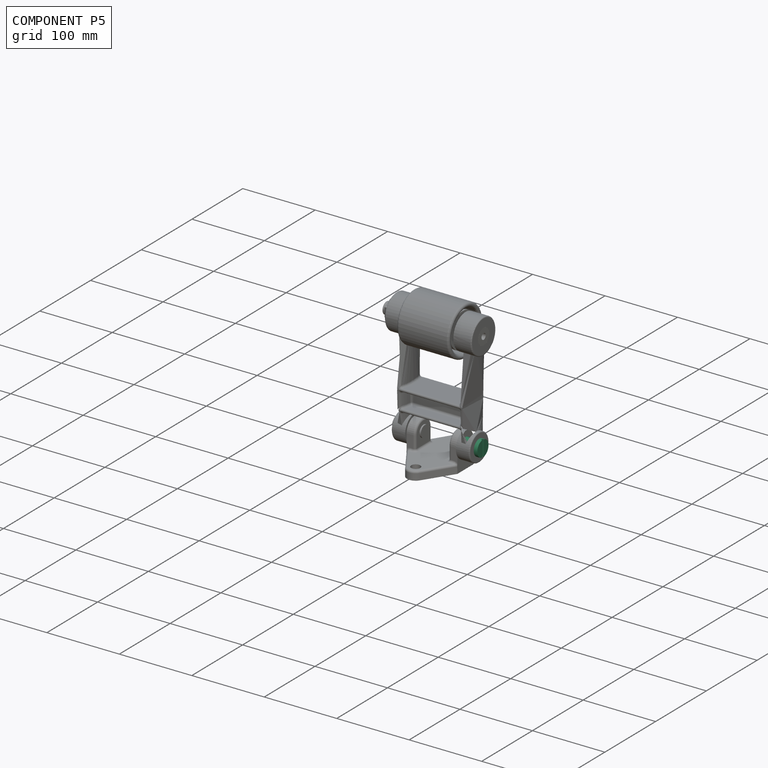
[diagram: component P5 — assembled]
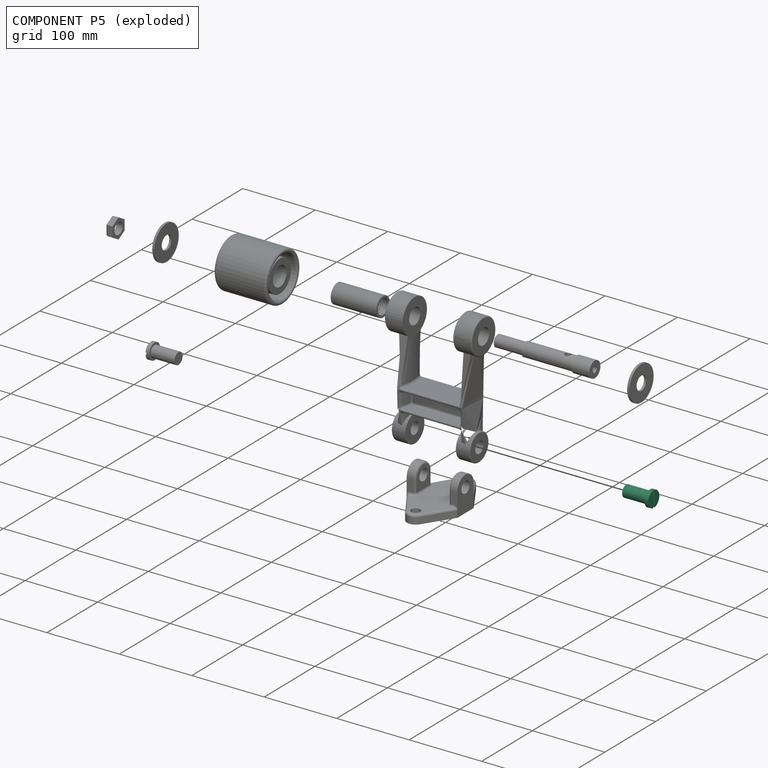
[diagram: component P5 — exploded]
COMPONENT P5 — same part as P2 (CADFS 00152149); its construction recipe is shown at P2.
Held by: FASTENED mate "Fastened 9" to P1; CYLINDRICAL mate "Cylindrical 1" to P1.
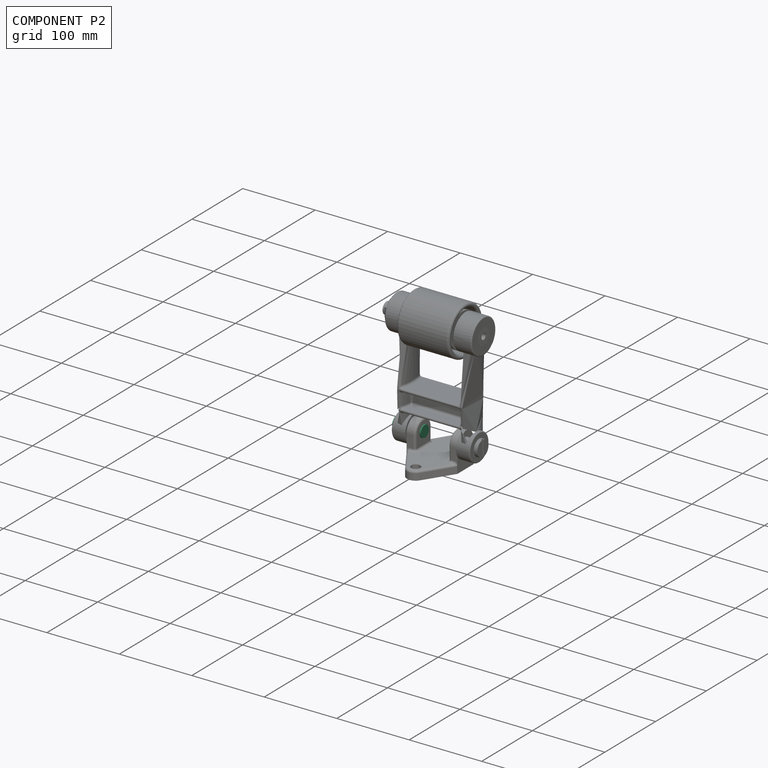
[diagram: component P2 — assembled]
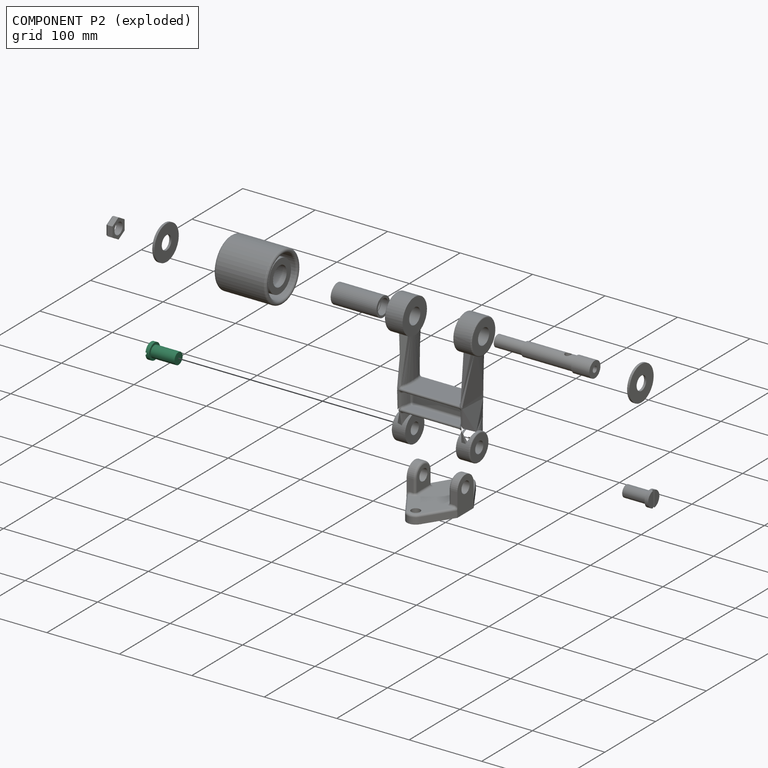
[diagram: component P2 — exploded]
COMPONENT P2 — recipe-attached (CADFS 00152149, mesh-verified: the recipe's output STEP matches this component's geometry to below the mesh-comparison resolution (tessellation chordal tolerance ~0.0737 mm)).
Held by: FASTENED mate "Fastened 7" to P1; CYLINDRICAL mate "Cylindrical 2" to P1.
Construction recipe (FeatureScript — the CAD program that rebuilds this solid; sketch coordinates are in the units given by the * unit suffixes, e.g. mm):

FeatureScript 1511;
import(path : "onshape/std/geometry.fs", version : "1511.0");
import(path : "onshape/std/common.fs", version : "1511.0");
const mm = millimeter;
const VERTEX = EntityType.VERTEX;
const EDGE = EntityType.EDGE;
const FACE = EntityType.FACE;
const BODY = EntityType.BODY;
function v(x, y){return vector(x, y);}
function OD(order){return orderDisambiguation(order);}
function OSD(set){return originalSetDisambiguation(set);}
function TD(topology){return topologyDisambiguation(topology);}
function TDD(query){return trueDependencyDisambiguation(query);}
function sQuery(a, b, c) {return sketchEntityQuery(a, b, c);}

annotation { "Feature Type Name" : "Feature", "Feature Type Description" : "" }
export const myFeature = defineFeature(function(context is Context, id is Id, definition is map)
    precondition{}
    {
        {
            var Q0;
            Q0=qCreatedBy(makeId("Right.planeOp"),FACE);
            var sketch = newSketch(context, id + "F0", { "sketchPlane" : qUnion([Q0])});
            skCircle(sketch, "E0", {"center": v(0, 0) * mm, "radius": 11 * mm});
            skLineSegment(sketch, "E1", {"start": v(-10.9, -1.5) * mm, "end": v(10.9, -1.5) * mm});
            skLineSegment(sketch, "E2", {"start": v(10.9, 1.5) * mm, "end": v(-10.9, 1.5) * mm});
            skSolve(sketch);
        }
        {
            var Q0;
            Q0=qSketchRegion(id+"F0",true);
            extrude(context, id + "F1", {"entities" : qUnion([Q0]), "depth" : 5 * mm});
        }
        {
            var Q0;
            Q0=makeQuery(id+"F1.opExtrude","CAP_FACE",FACE,{"disambiguationData":[OSD([sQuery(id+"F0.wireOp",EDGE,"E0")])],"isStart":false});
            var sketch = newSketch(context, id + "F2", { "sketchPlane" : qUnion([Q0])});
            skLineSegment(sketch, "E3.0", {"start": v(10.9, 1.5) * mm, "end": v(-10.9, 1.5) * mm});
            skLineSegment(sketch, "E4.0", {"start": v(-10.9, -1.5) * mm, "end": v(10.9, -1.5) * mm});
            skArc(sketch, "E5.0", {"start": v(-10.9, 1.5) * mm, "mid": v(-11, 0) * mm, "end": v(-10.9, -1.5) * mm});
            skArc(sketch, "E6.trimOffspring", {"start": v(10.9, -1.5) * mm, "mid": v(11, 0) * mm, "end": v(10.9, 1.5) * mm});
            skSolve(sketch);
        }
        {
            var Q0;
            Q0=qSketchRegion(id+"F2",true);
            extrude(context, id + "F3", {"entities" : qUnion([Q0]), "operationType" : NewBodyOperationType.REMOVE, "oppositeDirection" : true, "depth" : 1.5 * mm});
        }
        {
            var Q0;
            {var subQ0=sQuery(id+"F0.wireOp",EDGE,"E2");Q0=makeQuery(id+"F0.imprint","IMPRINT",FACE,{"disambiguationData":[TD([[makeQuery(id+"F0.imprint","IMPRINT",EDGE,{"derivedFrom":subQ0}),-1.0]])]});}
            var sketch = newSketch(context, id + "F4", { "sketchPlane" : qUnion([Q0])});
            skCircle(sketch, "E7", {"center": v(0, 0) * mm, "radius": 8 * mm});
            skSolve(sketch);
        }
        {
            var Q0;
            Q0=qSketchRegion(id+"F4",true);
            extrude(context, id + "F5", {"entities" : qUnion([Q0]), "operationType" : NewBodyOperationType.ADD, "oppositeDirection" : true, "depth" : 33 * mm});
        }
    });
PROVENANCE & LICENSES
Assembly (occurrences, transforms, mates, per-part STEP geometry): AutoMate dataset, Zenodo record 7776208, CC0.
Construction recipes: CADFS (HuggingFace VladPyatov/CADFS, CC-BY-4.0, layered over the ABC dataset), FeatureScript reconstruction programs keyed by ABC model id.
Join: ABC meta listings map ABC model id -> Onshape documentId; within a shared document, parts are matched by geometric signature (bounding-box dims + volume at 0.1% relative tolerance, exact B-rep face/solid counts).
Verification: 9 of this assembly's 10 components carry a recipe attachment, and every attachment is mesh-verified: the CADFS STEP and the AutoMate member STEP were compared as meshes in their shared local frame (symmetric sampled-point-to-mesh distance); worst across the 9 attachments: below the mesh-comparison resolution (tessellation chordal tolerance ~0.222 mm) on a 148 mm part.
Renders: orthographic iso camera (az 35 / el 25); the floor grid conveys scale (grid pitch printed in each image; no ruler). In the exploded view each component is displaced by its stored offset vector: the offsets alone carry the explosion direction (mate normal/axis signs are not orientation cues and do not encode it), and separation distances are assigned per mate-chain, not proportionally to assembly-order depth.
